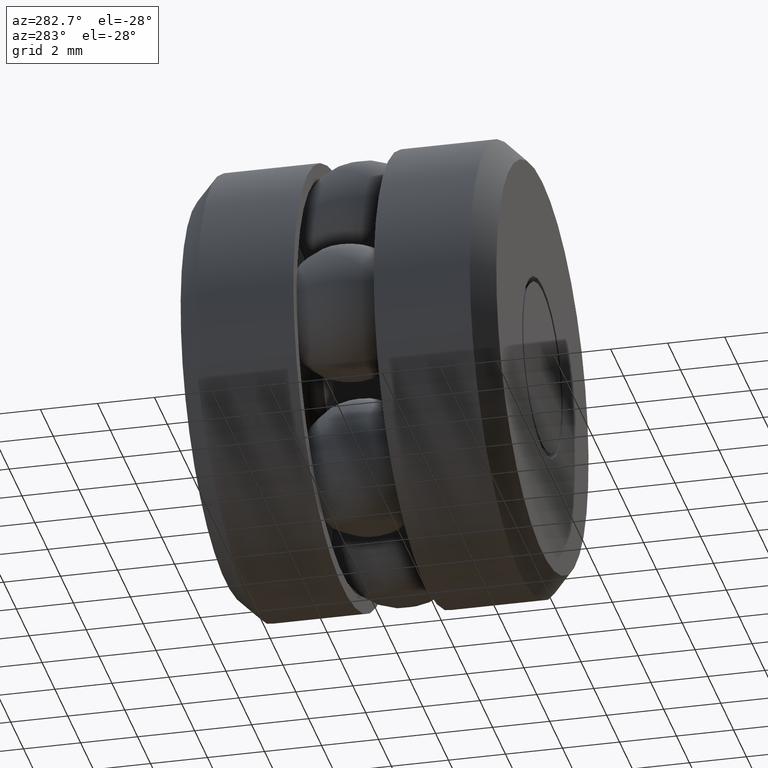
[diagram: clean part render]
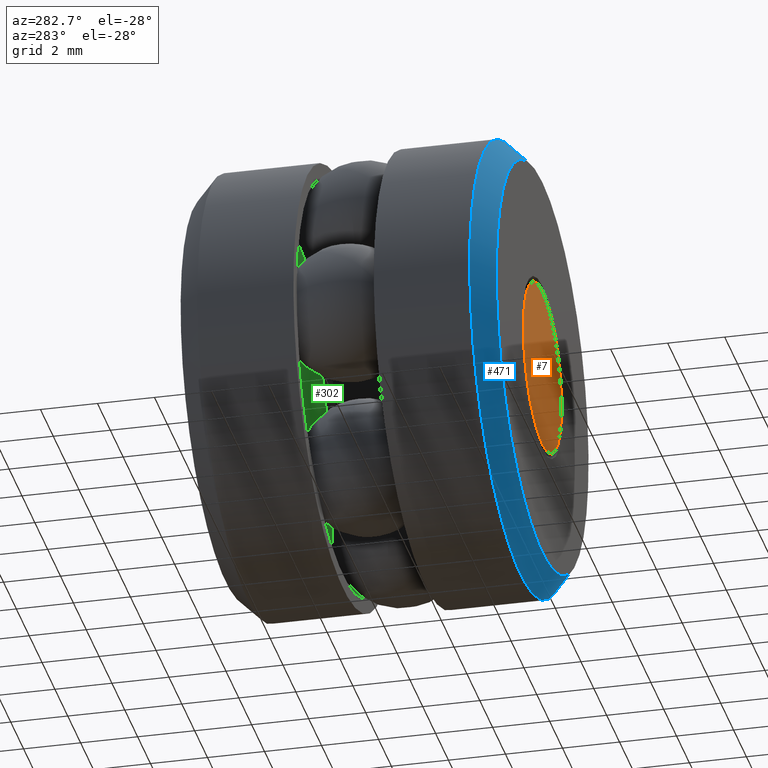
[diagram: same view with three faces highlighted in distinct colors, each labeled with its STEP entity id]
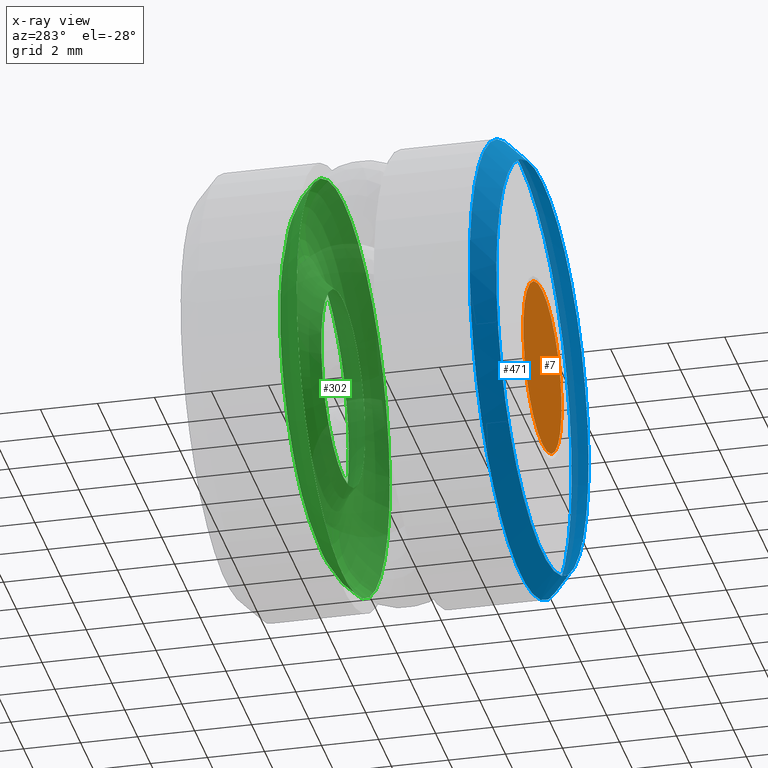
[diagram: x-ray of the same camera — body ghosted, the three highlighted faces saturated]
A machine part, auxiliary view with three faces highlighted in distinct colors.
The next image is the same camera in x-ray (body ghosted, the three faces saturated) — at least one of them is partly hidden behind the body in this view.
Their STEP definitions:

[orange] entity #7 — the highlighted planar face has unit normal (0, -1, 0).
#1 = AXIS2_PLACEMENT_3D ( 'NONE', #13, #2, #132 ) ;
#2 = DIRECTION ( 'NONE',  ( -0.0000000000000000000, 1.000000000000000000, -0.0000000000000000000 ) ) ;
#7 = ADVANCED_FACE ( 'NONE', ( #118 ), #383, .T. ) ;
#13 = CARTESIAN_POINT ( 'NONE',  ( 0.0000000000000000000, 0.0000000000000000000, 0.0000000000000000000 ) ) ;
#90 = AXIS2_PLACEMENT_3D ( 'NONE', #468, #463, #465 ) ;
#118 = FACE_OUTER_BOUND ( 'NONE', #275, .T. ) ;
#132 = DIRECTION ( 'NONE',  ( 0.0000000000000000000, 0.0000000000000000000, 1.000000000000000000 ) ) ;
#139 = VERTEX_POINT ( 'NONE', #186 ) ;
#165 = ORIENTED_EDGE ( 'NONE', *, *, #223, .F. ) ;
#186 = CARTESIAN_POINT ( 'NONE',  ( 0.0000000000000000000, 0.0000000000000000000, 0.1171874999999994600 ) ) ;
#223 = EDGE_CURVE ( 'NONE', #139, #139, #284, .T. ) ;
#275 = EDGE_LOOP ( 'NONE', ( #165 ) ) ;
#284 = CIRCLE ( 'NONE', #1, 0.1171874999999994600 ) ;
#383 = PLANE ( 'NONE',  #90 ) ;
#463 = DIRECTION ( 'NONE',  ( 0.0000000000000000000, -1.000000000000000000, 0.0000000000000000000 ) ) ;
#465 = DIRECTION ( 'NONE',  ( 0.0000000000000000000, -0.0000000000000000000, -1.000000000000000000 ) ) ;
#468 = CARTESIAN_POINT ( 'NONE',  ( -0.1171874999999994600, 0.0000000000000000000, 0.0000000000000000000 ) ) ;

[blue] entity #471 — the highlighted conical surface has half-angle 45 deg.
#54 = EDGE_CURVE ( 'NONE', #274, #274, #440, .T. ) ;
#60 = CONICAL_SURFACE ( 'NONE', #548, 0.3125000000000000000, 0.7853981633974430600 ) ;
#116 = CARTESIAN_POINT ( 'NONE',  ( 0.0000000000000000000, -4.033012303457140400E-017, 0.2825000000000000300 ) ) ;
#126 = AXIS2_PLACEMENT_3D ( 'NONE', #494, #492, #363 ) ;
#162 = DIRECTION ( 'NONE',  ( -0.0000000000000000000, 1.000000000000000000, -0.0000000000000000000 ) ) ;
#241 = AXIS2_PLACEMENT_3D ( 'NONE', #497, #495, #485 ) ;
#252 = CARTESIAN_POINT ( 'NONE',  ( 0.0000000000000000000, 0.03000000000000025900, 0.0000000000000000000 ) ) ;
#267 = CARTESIAN_POINT ( 'NONE',  ( 0.0000000000000000000, 0.03000000000000025900, 0.3125000000000000000 ) ) ;
#274 = VERTEX_POINT ( 'NONE', #267 ) ;
#299 = ORIENTED_EDGE ( 'NONE', *, *, #54, .F. ) ;
#329 = EDGE_LOOP ( 'NONE', ( #371 ) ) ;
#337 = FACE_OUTER_BOUND ( 'NONE', #545, .T. ) ;
#343 = VERTEX_POINT ( 'NONE', #116 ) ;
#363 = DIRECTION ( 'NONE',  ( 0.0000000000000000000, 0.0000000000000000000, 1.000000000000000000 ) ) ;
#365 = EDGE_CURVE ( 'NONE', #343, #343, #384, .T. ) ;
#371 = ORIENTED_EDGE ( 'NONE', *, *, #365, .T. ) ;
#384 = CIRCLE ( 'NONE', #241, 0.2825000000000000300 ) ;
#421 = FACE_BOUND ( 'NONE', #329, .T. ) ;
#440 = CIRCLE ( 'NONE', #126, 0.3125000000000000000 ) ;
#471 = ADVANCED_FACE ( 'NONE', ( #421, #337 ), #60, .T. ) ;
#485 = DIRECTION ( 'NONE',  ( 0.0000000000000000000, 0.0000000000000000000, 1.000000000000000000 ) ) ;
#492 = DIRECTION ( 'NONE',  ( -0.0000000000000000000, 1.000000000000000000, -0.0000000000000000000 ) ) ;
#494 = CARTESIAN_POINT ( 'NONE',  ( 0.0000000000000000000, 0.03000000000000025900, 0.0000000000000000000 ) ) ;
#495 = DIRECTION ( 'NONE',  ( -0.0000000000000000000, 1.000000000000000000, -0.0000000000000000000 ) ) ;
#497 = CARTESIAN_POINT ( 'NONE',  ( 0.0000000000000000000, -4.033012303457140400E-017, 0.0000000000000000000 ) ) ;
#531 = DIRECTION ( 'NONE',  ( 0.0000000000000000000, 0.0000000000000000000, 1.000000000000000000 ) ) ;
#545 = EDGE_LOOP ( 'NONE', ( #299 ) ) ;
#548 = AXIS2_PLACEMENT_3D ( 'NONE', #252, #162, #531 ) ;

[green] entity #302 — the highlighted toroidal blend (fillet) surface has major radius 5.3276 mm and minor (blend) radius 2.3812 mm.
#53 = AXIS2_PLACEMENT_3D ( 'NONE', #544, #102, #303 ) ;
#63 = ORIENTED_EDGE ( 'NONE', *, *, #348, .F. ) ;
#76 = DIRECTION ( 'NONE',  ( 0.0000000000000000000, 0.0000000000000000000, 1.000000000000000000 ) ) ;
#78 = DIRECTION ( 'NONE',  ( -0.0000000000000000000, 1.000000000000000000, -0.0000000000000000000 ) ) ;
#84 = CARTESIAN_POINT ( 'NONE',  ( 0.0000000000000000000, 0.2750000000000000200, 0.0000000000000000000 ) ) ;
#102 = DIRECTION ( 'NONE',  ( -0.0000000000000000000, 1.000000000000000000, -0.0000000000000000000 ) ) ;
#127 = FACE_OUTER_BOUND ( 'NONE', #442, .T. ) ;
#134 = CARTESIAN_POINT ( 'NONE',  ( 0.0000000000000000000, 0.2750000000000000200, 0.2847500000000000000 ) ) ;
#208 = EDGE_CURVE ( 'NONE', #369, #369, #307, .T. ) ;
#226 = CARTESIAN_POINT ( 'NONE',  ( 0.0000000000000000000, 0.2750000000000000200, 0.1347500000000000400 ) ) ;
#302 = ADVANCED_FACE ( 'NONE', ( #356, #127 ), #331, .F. ) ;
#303 = DIRECTION ( 'NONE',  ( 0.0000000000000000000, 0.0000000000000000000, 1.000000000000000000 ) ) ;
#306 = DIRECTION ( 'NONE',  ( 0.0000000000000000000, 0.0000000000000000000, 1.000000000000000000 ) ) ;
#307 = CIRCLE ( 'NONE', #502, 0.1347500000000000400 ) ;
#331 = TOROIDAL_SURFACE ( 'NONE', #460, 0.2097499999999999900, 0.09374999999999998600 ) ;
#348 = EDGE_CURVE ( 'NONE', #525, #525, #353, .T. ) ;
#353 = CIRCLE ( 'NONE', #53, 0.2847500000000000000 ) ;
#356 = FACE_OUTER_BOUND ( 'NONE', #418, .T. ) ;
#369 = VERTEX_POINT ( 'NONE', #226 ) ;
#408 = ORIENTED_EDGE ( 'NONE', *, *, #208, .T. ) ;
#418 = EDGE_LOOP ( 'NONE', ( #408 ) ) ;
#419 = DIRECTION ( 'NONE',  ( -0.0000000000000000000, 1.000000000000000000, -0.0000000000000000000 ) ) ;
#433 = CARTESIAN_POINT ( 'NONE',  ( 0.0000000000000000000, 0.2187500000000000000, 0.0000000000000000000 ) ) ;
#442 = EDGE_LOOP ( 'NONE', ( #63 ) ) ;
#460 = AXIS2_PLACEMENT_3D ( 'NONE', #433, #419, #306 ) ;
#502 = AXIS2_PLACEMENT_3D ( 'NONE', #84, #78, #76 ) ;
#525 = VERTEX_POINT ( 'NONE', #134 ) ;
#544 = CARTESIAN_POINT ( 'NONE',  ( 0.0000000000000000000, 0.2750000000000000200, 0.0000000000000000000 ) ) ;